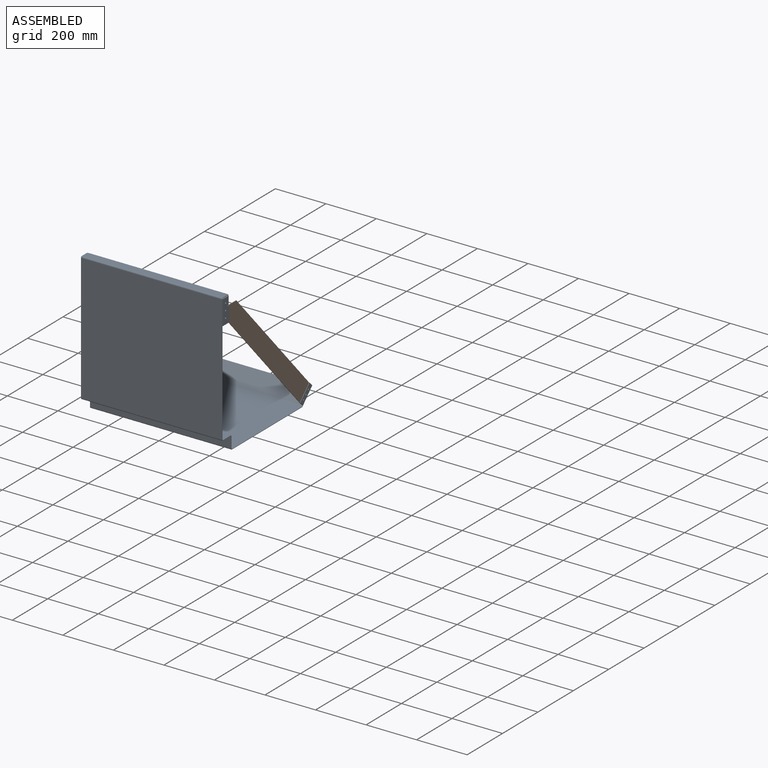
[diagram: assembled view]
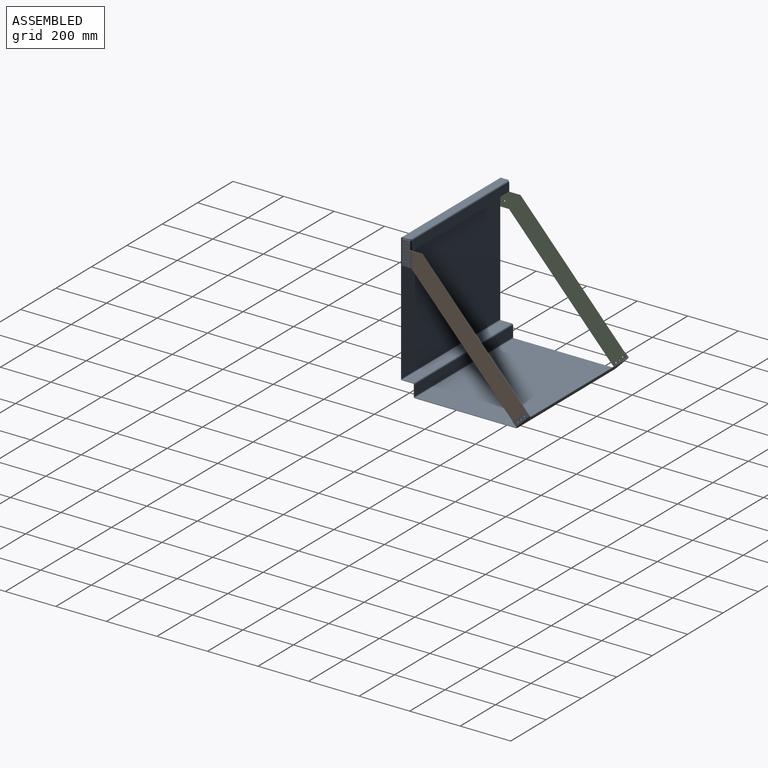
[diagram: assembled view, second angle]
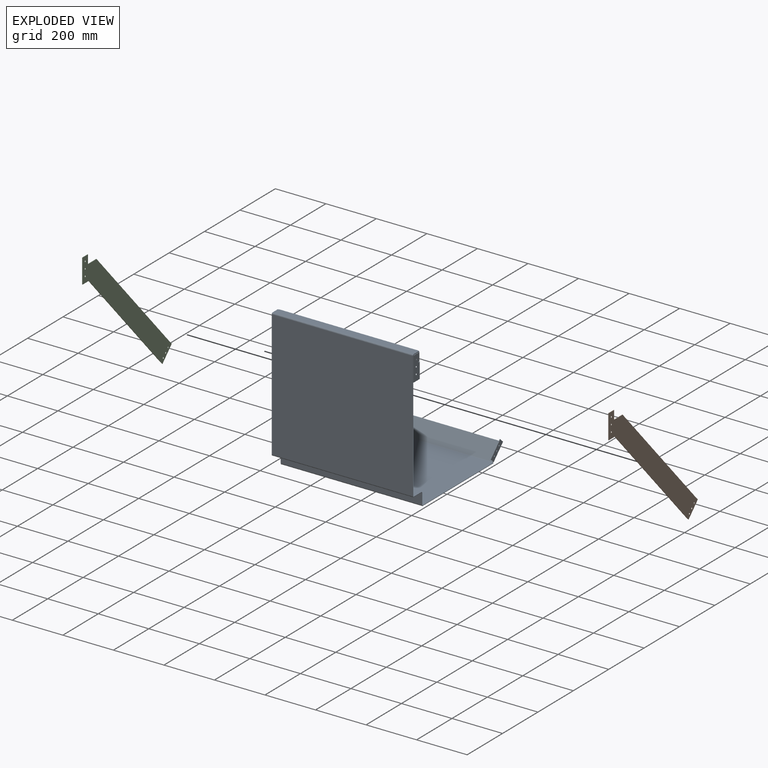
[diagram: exploded view]
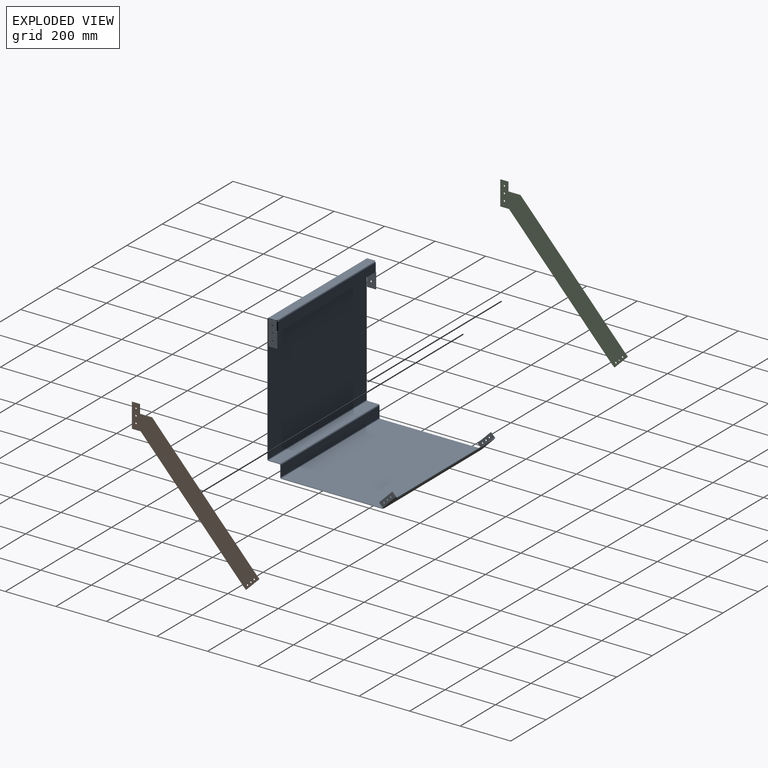
[diagram: exploded view, second angle]
ASSEMBLY  parts=3 mates=2
PART A: 114 faces, bbox 558.8x511.8x562.4 mm
  f0: plane 501.65x1.8mm, normal (1,0,0), area 900.9mm2, adj f2,f3,f51,f110
  f1: plane 501.65x1.8mm, normal (-1,0,0), area 900.9mm2, adj f2,f3,f52,f111
  f2: plane 558.8x501.65mm, normal (0,1,0), area 280322mm2, adj f0,f1,f54,f113
  f3: plane 558.8x501.65mm, normal (0,-1,0), area 280322mm2, adj f0,f1,f53,f112
  f4: plane 4.07x1.8mm, normal (0,1,0), area 7.3mm2, adj f7,f10,f11,f48
  f5: plane 1.8x0.9mm, normal (0,1,0), area 1.6mm2, adj f6,f9,f10,f11
  f6: plane 4.07x1.8mm, normal (0,1,0), area 7.3mm2, adj f5,f10,f11,f47
  f7: plane 1.8x0.9mm, normal (0,1,0), area 1.6mm2, adj f4,f8,f10,f11
  f8: plane 29.95x1.8mm, normal (1,0,0), area 53.8mm2, adj f7,f10,f11,f51
  f9: plane 29.95x1.8mm, normal (-1,0,0), area 53.8mm2, adj f5,f10,f11,f52
  f10: plane 558.8x29.95mm, normal (0,0,-1), area 16738.4mm2, adj f4,f5,f6,f7,f8,f9,f50,f54
  f11: plane 558.8x29.95mm, normal (0,0,1), area 16738.4mm2, adj f4,f5,f6,f7,f8,f9,f49,f53
  f12: plane 548.86x1.8mm, normal (0,0,-1), area 985.6mm2, adj f13,f14,f27,f44
  f13: plane 548.86x33.13mm, normal (0,-1,0), area 18183.3mm2, adj f12,f30,f46,f50
  f14: plane 548.86x33.13mm, normal (0,1,0), area 18183.3mm2, adj f12,f29,f45,f49
  f15: plane 61.59x1.8mm, normal (0,1,0), area 110.6mm2, adj f16,f17,f18,f26
  f16: plane 96.63x34.66mm, normal (1,0,0), area 3103mm2, adj f15,f18,f19,f20,f21,f22,f23,f24
  f17: plane 96.63x34.66mm, normal (-1,0,0), area 3103mm2, adj f15,f18,f19,f20,f21,f22,f23,f24
  f18: plane 34.66x1.8mm, normal (0,0,-1), area 62.2mm2, adj f15,f16,f17,f23
  f19: plane 30.59x1.8mm, normal (0,0,1), area 54.9mm2, adj f16,f17,f23,f28
  f20: cylinder r=3.17mm len=6.35mm, axis (1,0,0), area 35.8mm2, adj f16,f17
  f21: cylinder r=3.17mm len=6.35mm, axis (1,0,0), area 35.8mm2, adj f16,f17
  f22: cylinder r=3.17mm len=6.35mm, axis (1,0,0), area 35.8mm2, adj f16,f17
  f23: plane 96.63x1.8mm, normal (0,-1,0), area 173.5mm2, adj f16,f17,f18,f19
  f24: cylinder r=0.95mm len=1.91mm, axis (-1,0,0), area 5.4mm2, adj f16,f17,f25,f26
  f25: plane 3.81x1.8mm, normal (0,0,-1), area 6.8mm2, adj f16,f17,f24,f27
  f26: plane 7.88x1.8mm, normal (0,0,1), area 14.2mm2, adj f15,f16,f17,f24
  f27: plane 4.97x4.97mm, normal (0,0,-1), area 11.5mm2, adj f12,f25,f29,f30
  f28: plane 4.97x4.97mm, normal (0,0,1), area 11.5mm2, adj f19,f29,f30,f47
  f29: cylinder r=4.97mm len=33.13mm, axis (0,0,-1), area 258.7mm2, adj f14,f17,f27,f28
  f30: cylinder r=3.17mm len=33.13mm, axis (0,0,-1), area 165.2mm2, adj f13,f16,f27,f28
  f31: plane 30.59x1.8mm, normal (0,0,1), area 54.9mm2, adj f37,f38,f39,f43
  f32: plane 61.59x1.8mm, normal (0,1,0), area 110.6mm2, adj f33,f38,f39,f42
  f33: plane 34.66x1.8mm, normal (0,0,-1), area 62.2mm2, adj f32,f37,f38,f39
  f34: cylinder r=3.17mm len=6.35mm, axis (-1,0,0), area 35.8mm2, adj f38,f39
  f35: cylinder r=3.17mm len=6.35mm, axis (-1,0,0), area 35.8mm2, adj f38,f39
  f36: cylinder r=3.17mm len=6.35mm, axis (-1,0,0), area 35.8mm2, adj f38,f39
  f37: plane 96.63x1.8mm, normal (0,-1,0), area 173.5mm2, adj f31,f33,f38,f39
  f38: plane 96.63x34.66mm, normal (-1,0,0), area 3103mm2, adj f31,f32,f33,f34,f35,f36,f37,f40
  f39: plane 96.63x34.66mm, normal (1,0,0), area 3103mm2, adj f31,f32,f33,f34,f35,f36,f37,f40
  f40: cylinder r=0.95mm len=1.91mm, axis (1,0,0), area 5.4mm2, adj f38,f39,f41,f42
  f41: plane 3.81x1.8mm, normal (0,0,-1), area 6.8mm2, adj f38,f39,f40,f44
  f42: plane 7.88x1.8mm, normal (0,0,1), area 14.2mm2, adj f32,f38,f39,f40
  f43: plane 4.97x4.97mm, normal (0,0,1), area 11.5mm2, adj f31,f45,f46,f48
  f44: plane 4.97x4.97mm, normal (0,0,-1), area 11.5mm2, adj f12,f41,f45,f46
  f45: cylinder r=4.97mm len=33.13mm, axis (0,0,1), area 258.7mm2, adj f14,f39,f43,f44
  f46: cylinder r=3.17mm len=33.13mm, axis (0,0,1), area 165.2mm2, adj f13,f38,f43,f44
  f47: plane 4.97x4.97mm, normal (-1,0,0), area 11.5mm2, adj f6,f28,f49,f50
  f48: plane 4.97x4.97mm, normal (1,0,0), area 11.5mm2, adj f4,f43,f49,f50
  f49: cylinder r=4.97mm len=548.86mm, axis (-1,0,0), area 4285.5mm2, adj f11,f14,f47,f48
  f50: cylinder r=3.17mm len=548.86mm, axis (-1,0,0), area 2737.3mm2, adj f10,f13,f47,f48
  f51: plane 4.97x4.97mm, normal (1,0,0), area 11.5mm2, adj f0,f8,f53,f54
  f52: plane 4.97x4.97mm, normal (-1,0,0), area 11.5mm2, adj f1,f9,f53,f54
  f53: cylinder r=4.97mm len=558.8mm, axis (1,0,0), area 4363.2mm2, adj f3,f11,f51,f52
  f54: cylinder r=3.17mm len=558.8mm, axis (1,0,0), area 2786.9mm2, adj f2,f10,f51,f52
  f55: plane 42.65x1.8mm, normal (-1,0,0), area 76.6mm2, adj f57,f58,f107,f111
  f56: plane 42.65x1.8mm, normal (1,0,0), area 76.6mm2, adj f57,f58,f106,f110
  f57: plane 558.8x42.65mm, normal (0,0,1), area 23835.2mm2, adj f55,f56,f108,f113
  f58: plane 558.8x42.65mm, normal (0,0,-1), area 23835.2mm2, adj f55,f56,f109,f112
  f59: plane 42.65x1.8mm, normal (-1,0,0), area 76.6mm2, adj f61,f62,f102,f107
  f60: plane 42.65x1.8mm, normal (1,0,0), area 76.6mm2, adj f61,f62,f103,f106
  f61: plane 558.8x42.65mm, normal (0,1,0), area 23835.2mm2, adj f59,f60,f105,f108
  f62: plane 558.8x42.65mm, normal (0,-1,0), area 23835.2mm2, adj f59,f60,f104,f109
  f63: plane 4.07x1.8mm, normal (0,1,0), area 7.3mm2, adj f65,f69,f70,f98
  f64: plane 4.07x1.8mm, normal (0,1,0), area 7.3mm2, adj f68,f69,f70,f99
  f65: plane 1.8x0.9mm, normal (0,1,0), area 1.6mm2, adj f63,f66,f69,f70
  f66: plane 400.11x1.8mm, normal (-1,0,0), area 718.5mm2, adj f65,f69,f70,f102
  f67: plane 400.11x1.8mm, normal (1,0,0), area 718.5mm2, adj f68,f69,f70,f103
  f68: plane 1.8x0.9mm, normal (0,1,0), area 1.6mm2, adj f64,f67,f69,f70
  f69: plane 558.8x400.11mm, normal (0,0,1), area 223583.8mm2, adj f63,f64,f65,f66,f67,f68,f101,f105
  f70: plane 558.8x400.11mm, normal (0,0,-1), area 223583.8mm2, adj f63,f64,f65,f66,f67,f68,f100,f104
  f71: plane 548.86x1.27mm, normal (0,0.71,0.71), area 985.6mm2, adj f72,f73,f83,f94
  f72: plane 548.86x52.43mm, normal (0,-0.71,0.71), area 40692.9mm2, adj f71,f85,f97,f101
  f73: plane 548.86x52.43mm, normal (0,0.71,-0.71), area 40692.9mm2, adj f71,f84,f96,f100
  f74: plane 14.45x14.45mm, normal (0,-0.71,-0.71), area 36.7mm2, adj f79,f80,f81,f82
  f75: plane 14.45x14.45mm, normal (0,0.71,0.71), area 36.7mm2, adj f79,f80,f81,f83
  f76: cylinder r=3.17mm len=6.35mm, axis (1,0,0), area 35.8mm2, adj f80,f81
  f77: cylinder r=3.17mm len=6.35mm, axis (1,0,0), area 35.8mm2, adj f80,f81
  f78: cylinder r=3.17mm len=6.35mm, axis (1,0,0), area 35.8mm2, adj f80,f81
  f79: plane 52.43x52.43mm, normal (0,-0.71,0.71), area 133.1mm2, adj f74,f75,f80,f81
  f80: plane 66.87x66.87mm, normal (1,0,0), area 1419.6mm2, adj f74,f75,f76,f77,f78,f79,f85
  f81: plane 66.87x66.87mm, normal (-1,0,0), area 1419.6mm2, adj f74,f75,f76,f77,f78,f79,f84
  f82: plane 4.97x3.52mm, normal (0,-0.71,-0.71), area 11.5mm2, adj f74,f84,f85,f98
  f83: plane 4.97x3.52mm, normal (0,0.71,0.71), area 11.5mm2, adj f71,f75,f84,f85
  f84: cylinder r=4.97mm len=55.94mm, axis (0,-0.71,-0.71), area 578.9mm2, adj f73,f81,f82,f83
  f85: cylinder r=3.17mm len=54.67mm, axis (0,-0.71,-0.71), area 369.8mm2, adj f72,f80,f82,f83
  f86: plane 14.45x14.45mm, normal (0,0.71,0.71), area 36.7mm2, adj f91,f92,f93,f94
  f87: plane 14.45x14.45mm, normal (0,-0.71,-0.71), area 36.7mm2, adj f91,f92,f93,f95
  f88: cylinder r=3.17mm len=6.35mm, axis (-1,0,0), area 35.8mm2, adj f92,f93
  f89: cylinder r=3.17mm len=6.35mm, axis (-1,0,0), area 35.8mm2, adj f92,f93
  f90: cylinder r=3.17mm len=6.35mm, axis (-1,0,0), area 35.8mm2, adj f92,f93
  f91: plane 52.43x52.43mm, normal (0,-0.71,0.71), area 133.1mm2, adj f86,f87,f92,f93
  f92: plane 66.87x66.87mm, normal (-1,0,0), area 1419.6mm2, adj f86,f87,f88,f89,f90,f91,f97
  f93: plane 66.87x66.87mm, normal (1,0,0), area 1419.6mm2, adj f86,f87,f88,f89,f90,f91,f96
  f94: plane 4.97x3.52mm, normal (0,0.71,0.71), area 11.5mm2, adj f71,f86,f96,f97
  f95: plane 4.97x3.52mm, normal (0,-0.71,-0.71), area 11.5mm2, adj f87,f96,f97,f99
  f96: cylinder r=4.97mm len=55.94mm, axis (0,0.71,0.71), area 578.9mm2, adj f73,f93,f94,f95
  f97: cylinder r=3.17mm len=54.67mm, axis (0,0.71,0.71), area 369.8mm2, adj f72,f92,f94,f95
  f98: plane 3.52x2.73mm, normal (-1,0,0), area 5.7mm2, adj f63,f82,f100,f101
  f99: plane 3.52x2.73mm, normal (1,0,0), area 5.7mm2, adj f64,f95,f100,f101
  f100: cylinder r=4.97mm len=548.86mm, axis (-1,0,0), area 2142.8mm2, adj f70,f73,f98,f99
  f101: cylinder r=3.17mm len=548.86mm, axis (-1,0,0), area 1368.7mm2, adj f69,f72,f98,f99
  f102: plane 4.97x4.97mm, normal (-1,0,0), area 11.5mm2, adj f59,f66,f104,f105
  f103: plane 4.97x4.97mm, normal (1,0,0), area 11.5mm2, adj f60,f67,f104,f105
  f104: cylinder r=4.97mm len=558.8mm, axis (-1,0,0), area 4363.2mm2, adj f62,f70,f102,f103
  f105: cylinder r=3.17mm len=558.8mm, axis (-1,0,0), area 2786.9mm2, adj f61,f69,f102,f103
  f106: plane 4.97x4.97mm, normal (1,0,0), area 11.5mm2, adj f56,f60,f108,f109
  f107: plane 4.97x4.97mm, normal (-1,0,0), area 11.5mm2, adj f55,f59,f108,f109
  f108: cylinder r=4.97mm len=558.8mm, axis (1,0,0), area 4363.2mm2, adj f57,f61,f106,f107
  f109: cylinder r=3.17mm len=558.8mm, axis (1,0,0), area 2786.9mm2, adj f58,f62,f106,f107
  f110: plane 4.97x4.97mm, normal (1,0,0), area 11.5mm2, adj f0,f56,f112,f113
  f111: plane 4.97x4.97mm, normal (-1,0,0), area 11.5mm2, adj f1,f55,f112,f113
  f112: cylinder r=4.97mm len=558.8mm, axis (1,0,0), area 4363.2mm2, adj f3,f58,f110,f111
  f113: cylinder r=3.17mm len=558.8mm, axis (1,0,0), area 2786.9mm2, adj f2,f57,f110,f111
PART B: 18 faces, bbox 504x1.8x552.5 mm
  f0: plane 52.43x52.43mm, normal (-0.71,0,-0.71), area 133.1mm2, adj f1,f9,f16,f17
  f1: plane 14.45x14.45mm, normal (-0.71,0,0.71), area 36.7mm2, adj f0,f2,f16,f17
  f2: plane 450.54x410.8mm, normal (-0.74,0,0.67), area 1094.9mm2, adj f1,f3,f16,f17
  f3: plane 48.14x1.8mm, normal (0,0,1), area 86.5mm2, adj f2,f4,f16,f17
  f4: plane 35.04x1.8mm, normal (-1,0,0), area 62.9mm2, adj f3,f5,f16,f17
  f5: plane 30.59x1.8mm, normal (0,0,1), area 54.9mm2, adj f4,f6,f16,f17
  f6: plane 96.63x1.8mm, normal (1,0,0), area 173.5mm2, adj f5,f7,f16,f17
  f7: plane 34.66x1.8mm, normal (0,0,-1), area 62.2mm2, adj f6,f8,f16,f17
  f8: plane 441.38x402.44mm, normal (0.74,0,-0.67), area 1072.6mm2, adj f7,f9,f16,f17
  f9: plane 14.45x14.45mm, normal (0.71,0,-0.71), area 36.7mm2, adj f0,f8,f16,f17
  f10: cylinder r=3.17mm len=6.35mm, axis (0,-1,0), area 35.8mm2, adj f16,f17
  f11: cylinder r=3.17mm len=6.35mm, axis (0,-1,0), area 35.8mm2, adj f16,f17
  f12: cylinder r=3.17mm len=6.35mm, axis (0,-1,0), area 35.8mm2, adj f16,f17
  f13: cylinder r=3.17mm len=6.35mm, axis (0,-1,0), area 35.8mm2, adj f16,f17
  f14: cylinder r=3.17mm len=6.35mm, axis (0,-1,0), area 35.8mm2, adj f16,f17
  f15: cylinder r=3.17mm len=6.35mm, axis (0,-1,0), area 35.8mm2, adj f16,f17
  f16: plane 552.45x503.97mm, normal (0,1,0), area 50585.4mm2, adj f0,f1,f2,f3,f4,f5,f6,f7
  f17: plane 552.45x503.97mm, normal (0,-1,0), area 50585.4mm2, adj f0,f1,f2,f3,f4,f5,f6,f7
PART C: same geometry as B
PLACE A t=(-29.48,-197.9,145.99)mm
PLACE B rot(axis=(0,0,-1),90deg) t=(248.12,116.97,65.21)mm
PLACE C rot(axis=(0,0,-1),90deg) t=(-305.29,116.97,65.21)mm
MATE revolute B.f10 <-> A.f90  axis (-1,0,0) through (248.12,261.46,-136.86)mm
MATE revolute C.f13 <-> A.f76  axis (-1,0,0) through (-307.08,287.93,-109.45)mm
